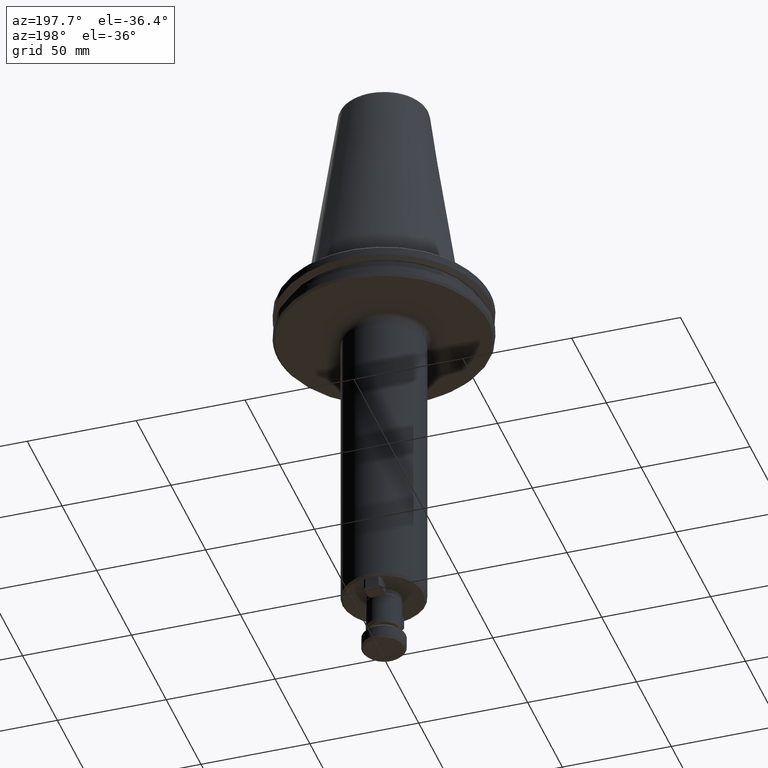
[diagram: clean part render]
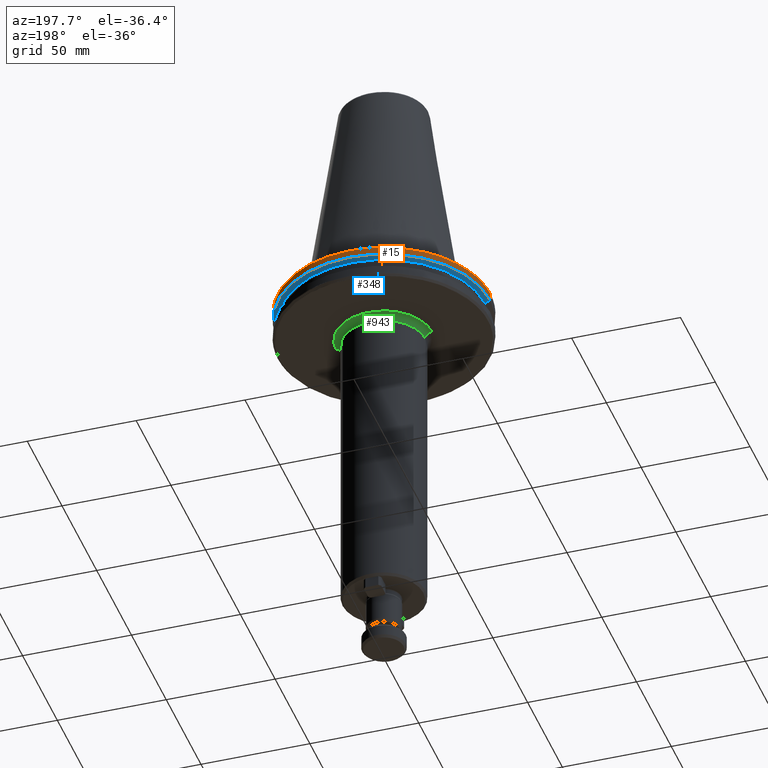
[diagram: same view with three faces highlighted in distinct colors, each labeled with its STEP entity id]
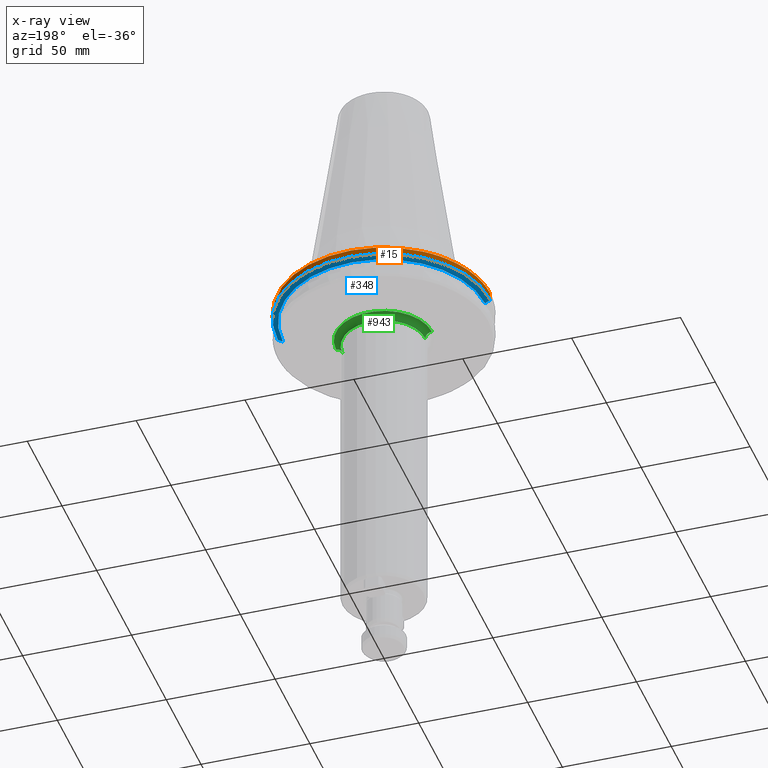
[diagram: x-ray of the same camera — body ghosted, the three highlighted faces saturated]
A machine part, auxiliary view with three faces highlighted in distinct colors.
The next image is the same camera in x-ray (body ghosted, the three faces saturated) — at least one of them is partly hidden behind the body in this view.
Their STEP definitions:

[orange] entity #15 — the highlighted cylindrical surface (partial cylindrical patch) has radius 48.75 mm, axis along (0, 0, 1).
#1 = AXIS2_PLACEMENT_3D ( 'NONE', #3798, #1947, #168 ) ;
#15 = ADVANCED_FACE ( 'NONE', ( #1837 ), #2549, .T. ) ;
#25 = ORIENTED_EDGE ( 'NONE', *, *, #2854, .F. ) ;
#76 = VERTEX_POINT ( 'NONE', #2801 ) ;
#168 = DIRECTION ( 'NONE',  ( 1.000000000000000000, 0.0000000000000000000, 0.0000000000000000000 ) ) ;
#178 = VERTEX_POINT ( 'NONE', #2149 ) ;
#228 = VERTEX_POINT ( 'NONE', #1015 ) ;
#255 = CARTESIAN_POINT ( 'NONE',  ( 0.0000000000000000000, 0.0000000000000000000, -4.365685424949236700 ) ) ;
#263 = EDGE_LOOP ( 'NONE', ( #3296, #2078, #2839, #3473, #373, #437, #25, #1668 ) ) ;
#320 = VERTEX_POINT ( 'NONE', #3446 ) ;
#331 = EDGE_CURVE ( 'NONE', #3765, #1669, #3708, .T. ) ;
#333 = DIRECTION ( 'NONE',  ( -0.0000000000000000000, -0.0000000000000000000, 1.000000000000000000 ) ) ;
#373 = ORIENTED_EDGE ( 'NONE', *, *, #3498, .F. ) ;
#437 = ORIENTED_EDGE ( 'NONE', *, *, #331, .T. ) ;
#564 = DIRECTION ( 'NONE',  ( 1.000000000000000000, 0.0000000000000000000, 0.0000000000000000000 ) ) ;
#605 = CARTESIAN_POINT ( 'NONE',  ( 46.87302845420868600, 13.39707817141269600, -4.365685424949236700 ) ) ;
#756 = CIRCLE ( 'NONE', #1089, 48.75000000000000000 ) ;
#763 = DIRECTION ( 'NONE',  ( -0.0000000000000000000, -0.0000000000000000000, -1.000000000000000000 ) ) ;
#794 = EDGE_CURVE ( 'NONE', #228, #3816, #756, .T. ) ;
#800 = CIRCLE ( 'NONE', #1, 48.75000000000000000 ) ;
#964 = VERTEX_POINT ( 'NONE', #3400 ) ;
#1015 = CARTESIAN_POINT ( 'NONE',  ( -46.83796378645140400, 13.51915856623730000, -4.365685424949236700 ) ) ;
#1089 = AXIS2_PLACEMENT_3D ( 'NONE', #2101, #333, #2419 ) ;
#1154 = AXIS2_PLACEMENT_3D ( 'NONE', #3187, #1361, #3505 ) ;
#1361 = DIRECTION ( 'NONE',  ( -0.0000000000000000000, -0.0000000000000000000, 1.000000000000000000 ) ) ;
#1363 = VECTOR ( 'NONE', #1965, 1000.000000000000000 ) ;
#1548 = CIRCLE ( 'NONE', #1154, 48.75000000000000000 ) ;
#1617 = AXIS2_PLACEMENT_3D ( 'NONE', #3475, #1641, #3780 ) ;
#1641 = DIRECTION ( 'NONE',  ( -0.0000000000000000000, -0.0000000000000000000, -1.000000000000000000 ) ) ;
#1668 = ORIENTED_EDGE ( 'NONE', *, *, #3592, .F. ) ;
#1669 = VERTEX_POINT ( 'NONE', #605 ) ;
#1837 = FACE_OUTER_BOUND ( 'NONE', #263, .T. ) ;
#1845 = CIRCLE ( 'NONE', #2729, 48.75000000000000000 ) ;
#1901 = CARTESIAN_POINT ( 'NONE',  ( -48.75000000000000000, 5.970153145843347100E-015, -4.365685424949236700 ) ) ;
#1947 = DIRECTION ( 'NONE',  ( 0.0000000000000000000, 0.0000000000000000000, 1.000000000000000000 ) ) ;
#1965 = DIRECTION ( 'NONE',  ( 0.0000000000000000000, 0.0000000000000000000, 1.000000000000000000 ) ) ;
#2005 = AXIS2_PLACEMENT_3D ( 'NONE', #3693, #3654, #2142 ) ;
#2051 = EDGE_CURVE ( 'NONE', #178, #76, #800, .T. ) ;
#2059 = EDGE_CURVE ( 'NONE', #228, #320, #3945, .T. ) ;
#2078 = ORIENTED_EDGE ( 'NONE', *, *, #2890, .T. ) ;
#2101 = CARTESIAN_POINT ( 'NONE',  ( 0.0000000000000000000, 0.0000000000000000000, -4.365685424949236700 ) ) ;
#2139 = LINE ( 'NONE', #3820, #1363 ) ;
#2142 = DIRECTION ( 'NONE',  ( 1.000000000000000000, 0.0000000000000000000, 0.0000000000000000000 ) ) ;
#2149 = CARTESIAN_POINT ( 'NONE',  ( 48.75000000000000000, 0.0000000000000000000, -7.852404735808352000 ) ) ;
#2334 = DIRECTION ( 'NONE',  ( -0.0000000000000000000, -0.0000000000000000000, 1.000000000000000000 ) ) ;
#2419 = DIRECTION ( 'NONE',  ( 1.000000000000000000, 0.0000000000000000000, 0.0000000000000000000 ) ) ;
#2549 = CYLINDRICAL_SURFACE ( 'NONE', #2005, 48.75000000000000000 ) ;
#2563 = CARTESIAN_POINT ( 'NONE',  ( 0.0000000000000000000, 0.0000000000000000000, -4.365685424949236700 ) ) ;
#2708 = AXIS2_PLACEMENT_3D ( 'NONE', #2563, #763, #2867 ) ;
#2729 = AXIS2_PLACEMENT_3D ( 'NONE', #255, #2334, #564 ) ;
#2801 = CARTESIAN_POINT ( 'NONE',  ( -48.75000000000000000, 5.970153145843347100E-015, -7.852404735808352000 ) ) ;
#2839 = ORIENTED_EDGE ( 'NONE', *, *, #794, .F. ) ;
#2854 = EDGE_CURVE ( 'NONE', #964, #1669, #1845, .T. ) ;
#2867 = DIRECTION ( 'NONE',  ( 1.000000000000000000, 0.0000000000000000000, 0.0000000000000000000 ) ) ;
#2890 = EDGE_CURVE ( 'NONE', #76, #3816, #3588, .T. ) ;
#3187 = CARTESIAN_POINT ( 'NONE',  ( 0.0000000000000000000, 0.0000000000000000000, -4.365685424949236700 ) ) ;
#3296 = ORIENTED_EDGE ( 'NONE', *, *, #2051, .T. ) ;
#3297 = DIRECTION ( 'NONE',  ( 0.0000000000000000000, 0.0000000000000000000, 1.000000000000000000 ) ) ;
#3389 = VECTOR ( 'NONE', #3297, 1000.000000000000000 ) ;
#3400 = CARTESIAN_POINT ( 'NONE',  ( 48.75000000000000000, 0.0000000000000000000, -4.365685424949236700 ) ) ;
#3446 = CARTESIAN_POINT ( 'NONE',  ( -38.42606537234849600, 30.00000000000000000, -4.365685424949236700 ) ) ;
#3473 = ORIENTED_EDGE ( 'NONE', *, *, #2059, .T. ) ;
#3475 = CARTESIAN_POINT ( 'NONE',  ( 0.0000000000000000000, 0.0000000000000000000, -4.365685424949236700 ) ) ;
#3498 = EDGE_CURVE ( 'NONE', #3765, #320, #1548, .T. ) ;
#3505 = DIRECTION ( 'NONE',  ( 1.000000000000000000, 0.0000000000000000000, 0.0000000000000000000 ) ) ;
#3580 = CARTESIAN_POINT ( 'NONE',  ( -48.75000000000000000, 5.970153145843347100E-015, 113.5216080541959500 ) ) ;
#3588 = LINE ( 'NONE', #3580, #3389 ) ;
#3592 = EDGE_CURVE ( 'NONE', #178, #964, #2139, .T. ) ;
#3654 = DIRECTION ( 'NONE',  ( 0.0000000000000000000, 0.0000000000000000000, 1.000000000000000000 ) ) ;
#3693 = CARTESIAN_POINT ( 'NONE',  ( 0.0000000000000000000, 0.0000000000000000000, 113.5216080541959500 ) ) ;
#3708 = CIRCLE ( 'NONE', #1617, 48.75000000000000000 ) ;
#3749 = CARTESIAN_POINT ( 'NONE',  ( -29.99999999999999600, 38.42606537234850400, -4.365685424949236700 ) ) ;
#3765 = VERTEX_POINT ( 'NONE', #3749 ) ;
#3780 = DIRECTION ( 'NONE',  ( 1.000000000000000000, -1.776356839400250500E-015, 0.0000000000000000000 ) ) ;
#3798 = CARTESIAN_POINT ( 'NONE',  ( 0.0000000000000000000, 0.0000000000000000000, -7.852404735808352000 ) ) ;
#3816 = VERTEX_POINT ( 'NONE', #1901 ) ;
#3820 = CARTESIAN_POINT ( 'NONE',  ( 48.75000000000000000, 0.0000000000000000000, 113.5216080541959500 ) ) ;
#3945 = CIRCLE ( 'NONE', #2708, 48.75000000000000000 ) ;

[blue] entity #348 — the highlighted conical surface has half-angle 60 deg.
#1 = AXIS2_PLACEMENT_3D ( 'NONE', #3798, #1947, #168 ) ;
#76 = VERTEX_POINT ( 'NONE', #2801 ) ;
#168 = DIRECTION ( 'NONE',  ( 1.000000000000000000, 0.0000000000000000000, 0.0000000000000000000 ) ) ;
#178 = VERTEX_POINT ( 'NONE', #2149 ) ;
#306 = CONICAL_SURFACE ( 'NONE', #1583, 48.75000000000000700, 1.047197551196595900 ) ;
#348 = ADVANCED_FACE ( 'NONE', ( #497 ), #306, .T. ) ;
#497 = FACE_OUTER_BOUND ( 'NONE', #2804, .T. ) ;
#574 = AXIS2_PLACEMENT_3D ( 'NONE', #1638, #3777, #1925 ) ;
#734 = DIRECTION ( 'NONE',  ( 0.0000000000000000000, 0.0000000000000000000, 1.000000000000000000 ) ) ;
#800 = CIRCLE ( 'NONE', #1, 48.75000000000000000 ) ;
#937 = ORIENTED_EDGE ( 'NONE', *, *, #3806, .T. ) ;
#1004 = VECTOR ( 'NONE', #1423, 1000.000000000000000 ) ;
#1028 = DIRECTION ( 'NONE',  ( 1.000000000000000000, 0.0000000000000000000, 0.0000000000000000000 ) ) ;
#1067 = ORIENTED_EDGE ( 'NONE', *, *, #2150, .T. ) ;
#1153 = CARTESIAN_POINT ( 'NONE',  ( 48.75000000000000700, 0.0000000000000000000, -7.852404735808348400 ) ) ;
#1399 = VERTEX_POINT ( 'NONE', #3560 ) ;
#1423 = DIRECTION ( 'NONE',  ( -0.8660254037844377100, 1.060575238724905800E-016, 0.5000000000000016700 ) ) ;
#1527 = VECTOR ( 'NONE', #3279, 1000.000000000000000 ) ;
#1583 = AXIS2_PLACEMENT_3D ( 'NONE', #2226, #734, #1028 ) ;
#1638 = CARTESIAN_POINT ( 'NONE',  ( 0.0000000000000000000, 0.0000000000000000000, -9.200000000000009900 ) ) ;
#1925 = DIRECTION ( 'NONE',  ( 1.000000000000000000, 0.0000000000000000000, 0.0000000000000000000 ) ) ;
#1947 = DIRECTION ( 'NONE',  ( 0.0000000000000000000, 0.0000000000000000000, 1.000000000000000000 ) ) ;
#2051 = EDGE_CURVE ( 'NONE', #178, #76, #800, .T. ) ;
#2091 = CIRCLE ( 'NONE', #574, 46.41589653438085600 ) ;
#2149 = CARTESIAN_POINT ( 'NONE',  ( 48.75000000000000000, 0.0000000000000000000, -7.852404735808352000 ) ) ;
#2150 = EDGE_CURVE ( 'NONE', #3384, #76, #3344, .T. ) ;
#2191 = EDGE_CURVE ( 'NONE', #1399, #178, #2319, .T. ) ;
#2226 = CARTESIAN_POINT ( 'NONE',  ( 0.0000000000000000000, 0.0000000000000000000, -7.852404735808348400 ) ) ;
#2242 = ORIENTED_EDGE ( 'NONE', *, *, #2191, .F. ) ;
#2319 = LINE ( 'NONE', #1153, #1527 ) ;
#2801 = CARTESIAN_POINT ( 'NONE',  ( -48.75000000000000000, 5.970153145843347100E-015, -7.852404735808352000 ) ) ;
#2804 = EDGE_LOOP ( 'NONE', ( #937, #1067, #3834, #2242 ) ) ;
#3101 = CARTESIAN_POINT ( 'NONE',  ( -46.41589653438085600, 5.827230528940885300E-015, -9.200000000000009900 ) ) ;
#3252 = CARTESIAN_POINT ( 'NONE',  ( -48.75000000000000700, 5.970153145843347900E-015, -7.852404735808348400 ) ) ;
#3279 = DIRECTION ( 'NONE',  ( 0.8660254037844377100, 0.0000000000000000000, 0.5000000000000016700 ) ) ;
#3344 = LINE ( 'NONE', #3252, #1004 ) ;
#3384 = VERTEX_POINT ( 'NONE', #3101 ) ;
#3560 = CARTESIAN_POINT ( 'NONE',  ( 46.41589653438085600, 0.0000000000000000000, -9.200000000000009900 ) ) ;
#3777 = DIRECTION ( 'NONE',  ( 0.0000000000000000000, 0.0000000000000000000, 1.000000000000000000 ) ) ;
#3798 = CARTESIAN_POINT ( 'NONE',  ( 0.0000000000000000000, 0.0000000000000000000, -7.852404735808352000 ) ) ;
#3806 = EDGE_CURVE ( 'NONE', #1399, #3384, #2091, .T. ) ;
#3834 = ORIENTED_EDGE ( 'NONE', *, *, #2051, .F. ) ;

[green] entity #943 — the highlighted toroidal blend (fillet) surface has major radius 22 mm and minor (blend) radius 3 mm.
#89 = CIRCLE ( 'NONE', #764, 22.00000000000000000 ) ;
#93 = CIRCLE ( 'NONE', #979, 2.999999999999999100 ) ;
#145 = CIRCLE ( 'NONE', #1196, 2.999999999999999100 ) ;
#418 = VERTEX_POINT ( 'NONE', #510 ) ;
#510 = CARTESIAN_POINT ( 'NONE',  ( 19.00000000000000000, 0.0000000000000000000, -22.10000000000000500 ) ) ;
#699 = CIRCLE ( 'NONE', #2348, 19.00000000000000000 ) ;
#737 = VERTEX_POINT ( 'NONE', #2405 ) ;
#764 = AXIS2_PLACEMENT_3D ( 'NONE', #2783, #968, #3098 ) ;
#922 = DIRECTION ( 'NONE',  ( 0.0000000000000000000, 0.0000000000000000000, -1.000000000000000000 ) ) ;
#943 = ADVANCED_FACE ( 'NONE', ( #1188 ), #1460, .F. ) ;
#968 = DIRECTION ( 'NONE',  ( -0.0000000000000000000, -0.0000000000000000000, 1.000000000000000000 ) ) ;
#979 = AXIS2_PLACEMENT_3D ( 'NONE', #1603, #3746, #1895 ) ;
#1003 = AXIS2_PLACEMENT_3D ( 'NONE', #2430, #922, #3675 ) ;
#1039 = EDGE_CURVE ( 'NONE', #737, #1814, #93, .T. ) ;
#1118 = ORIENTED_EDGE ( 'NONE', *, *, #2990, .F. ) ;
#1139 = ORIENTED_EDGE ( 'NONE', *, *, #3715, .F. ) ;
#1188 = FACE_OUTER_BOUND ( 'NONE', #3191, .T. ) ;
#1196 = AXIS2_PLACEMENT_3D ( 'NONE', #3173, #1353, #3487 ) ;
#1353 = DIRECTION ( 'NONE',  ( -1.224646799147353200E-016, 1.000000000000000000, 0.0000000000000000000 ) ) ;
#1422 = ORIENTED_EDGE ( 'NONE', *, *, #3464, .F. ) ;
#1439 = ORIENTED_EDGE ( 'NONE', *, *, #1039, .T. ) ;
#1460 = TOROIDAL_SURFACE ( 'NONE', #1003, 22.00000000000000000, 2.999999999999999600 ) ;
#1603 = CARTESIAN_POINT ( 'NONE',  ( -22.00000000000000000, 0.0000000000000000000, -22.10000000000000500 ) ) ;
#1799 = DIRECTION ( 'NONE',  ( 0.0000000000000000000, 0.0000000000000000000, -1.000000000000000000 ) ) ;
#1814 = VERTEX_POINT ( 'NONE', #3056 ) ;
#1895 = DIRECTION ( 'NONE',  ( 0.0000000000000000000, 0.0000000000000000000, -1.000000000000000000 ) ) ;
#2254 = VERTEX_POINT ( 'NONE', #3911 ) ;
#2348 = AXIS2_PLACEMENT_3D ( 'NONE', #3637, #1799, #3950 ) ;
#2405 = CARTESIAN_POINT ( 'NONE',  ( -19.00000000000000000, 2.326828918379971000E-015, -22.10000000000000500 ) ) ;
#2430 = CARTESIAN_POINT ( 'NONE',  ( 0.0000000000000000000, 0.0000000000000000000, -22.10000000000000500 ) ) ;
#2783 = CARTESIAN_POINT ( 'NONE',  ( 0.0000000000000000000, 0.0000000000000000000, -19.10000000000000500 ) ) ;
#2990 = EDGE_CURVE ( 'NONE', #737, #418, #699, .T. ) ;
#3056 = CARTESIAN_POINT ( 'NONE',  ( -22.00000000000000000, 0.0000000000000000000, -19.10000000000000500 ) ) ;
#3098 = DIRECTION ( 'NONE',  ( -1.000000000000000000, 0.0000000000000000000, 0.0000000000000000000 ) ) ;
#3173 = CARTESIAN_POINT ( 'NONE',  ( 22.00000000000000000, 2.694222958124176800E-015, -22.10000000000000500 ) ) ;
#3191 = EDGE_LOOP ( 'NONE', ( #1422, #1118, #1439, #1139 ) ) ;
#3464 = EDGE_CURVE ( 'NONE', #418, #2254, #145, .T. ) ;
#3487 = DIRECTION ( 'NONE',  ( -1.000000000000000000, -1.224646799147353500E-016, 0.0000000000000000000 ) ) ;
#3637 = CARTESIAN_POINT ( 'NONE',  ( 0.0000000000000000000, 0.0000000000000000000, -22.10000000000000500 ) ) ;
#3675 = DIRECTION ( 'NONE',  ( -1.000000000000000000, 0.0000000000000000000, 0.0000000000000000000 ) ) ;
#3715 = EDGE_CURVE ( 'NONE', #2254, #1814, #89, .T. ) ;
#3746 = DIRECTION ( 'NONE',  ( -0.0000000000000000000, -1.000000000000000000, -0.0000000000000000000 ) ) ;
#3911 = CARTESIAN_POINT ( 'NONE',  ( 22.00000000000000000, 2.694222958124176800E-015, -19.10000000000000500 ) ) ;
#3950 = DIRECTION ( 'NONE',  ( -1.000000000000000000, 0.0000000000000000000, 0.0000000000000000000 ) ) ;